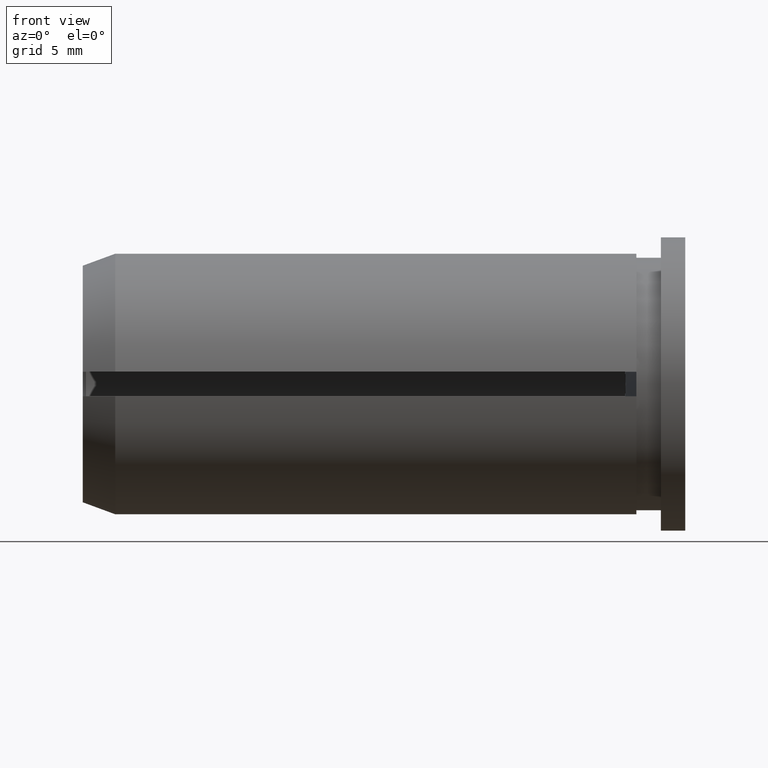
[diagram: clean part render]
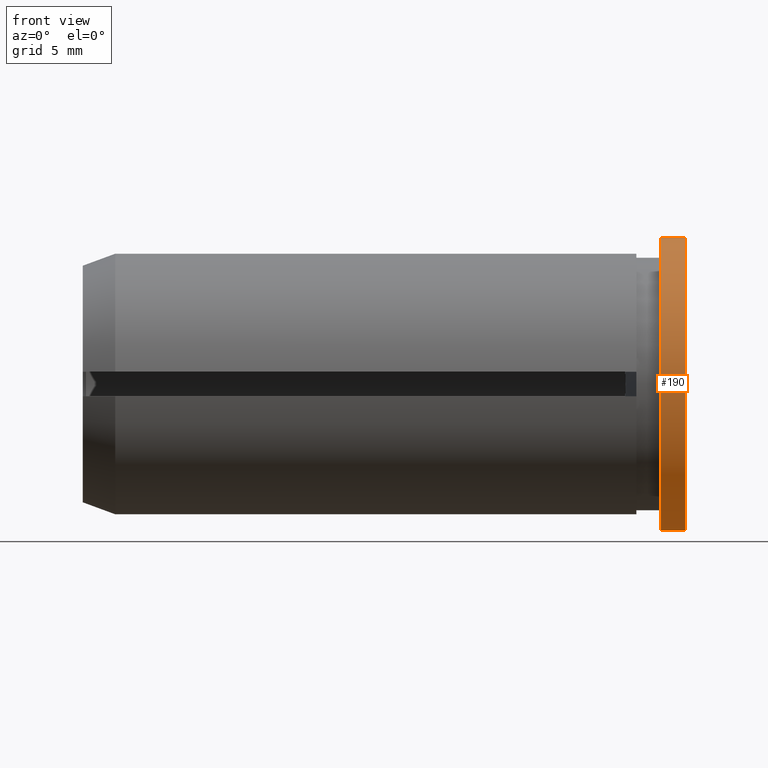
[diagram: same view with one face highlighted and labeled with its STEP entity id]
A machine part, front view. The second image highlights one B-rep face of the part: STEP entity #190.
In plain terms, the highlighted cylindrical surface (bore or boss wall) has radius 9 mm, axis along (-1, -0, -0).
Its self-contained STEP definition (entity closure, byte-faithful):
#19 = DIRECTION ( 'NONE',  ( -1.000000000000000000, -0.0000000000000000000, -0.0000000000000000000 ) ) ;
#39 = CIRCLE ( 'NONE', #386, 9.000000000000000000 ) ;
#51 = AXIS2_PLACEMENT_3D ( 'NONE', #216, #357, #222 ) ;
#65 = EDGE_CURVE ( 'NONE', #72, #72, #39, .T. ) ;
#72 = VERTEX_POINT ( 'NONE', #195 ) ;
#99 = EDGE_LOOP ( 'NONE', ( #339 ) ) ;
#117 = FACE_OUTER_BOUND ( 'NONE', #245, .T. ) ;
#190 = ADVANCED_FACE ( 'NONE', ( #342, #117 ), #285, .T. ) ;
#194 = ORIENTED_EDGE ( 'NONE', *, *, #217, .T. ) ;
#195 = CARTESIAN_POINT ( 'NONE',  ( -1.500000000000001300, 0.0000000000000000000, 9.000000000000000000 ) ) ;
#208 = CARTESIAN_POINT ( 'NONE',  ( -38.58775536857143600, 0.0000000000000000000, 0.0000000000000000000 ) ) ;
#216 = CARTESIAN_POINT ( 'NONE',  ( 0.0000000000000000000, 0.0000000000000000000, 0.0000000000000000000 ) ) ;
#217 = EDGE_CURVE ( 'NONE', #400, #400, #401, .T. ) ;
#222 = DIRECTION ( 'NONE',  ( 0.0000000000000000000, 0.0000000000000000000, 1.000000000000000000 ) ) ;
#237 = CARTESIAN_POINT ( 'NONE',  ( -1.500000000000001300, 0.0000000000000000000, 0.0000000000000000000 ) ) ;
#238 = DIRECTION ( 'NONE',  ( 0.0000000000000000000, 0.0000000000000000000, 1.000000000000000000 ) ) ;
#245 = EDGE_LOOP ( 'NONE', ( #194 ) ) ;
#259 = CARTESIAN_POINT ( 'NONE',  ( 0.0000000000000000000, 0.0000000000000000000, 9.000000000000000000 ) ) ;
#285 = CYLINDRICAL_SURFACE ( 'NONE', #347, 9.000000000000000000 ) ;
#339 = ORIENTED_EDGE ( 'NONE', *, *, #65, .F. ) ;
#342 = FACE_OUTER_BOUND ( 'NONE', #99, .T. ) ;
#345 = DIRECTION ( 'NONE',  ( 0.0000000000000000000, 0.0000000000000000000, 1.000000000000000000 ) ) ;
#347 = AXIS2_PLACEMENT_3D ( 'NONE', #208, #419, #345 ) ;
#357 = DIRECTION ( 'NONE',  ( -1.000000000000000000, -0.0000000000000000000, -0.0000000000000000000 ) ) ;
#386 = AXIS2_PLACEMENT_3D ( 'NONE', #237, #19, #238 ) ;
#400 = VERTEX_POINT ( 'NONE', #259 ) ;
#401 = CIRCLE ( 'NONE', #51, 9.000000000000000000 ) ;
#419 = DIRECTION ( 'NONE',  ( -1.000000000000000000, -0.0000000000000000000, -0.0000000000000000000 ) ) ;